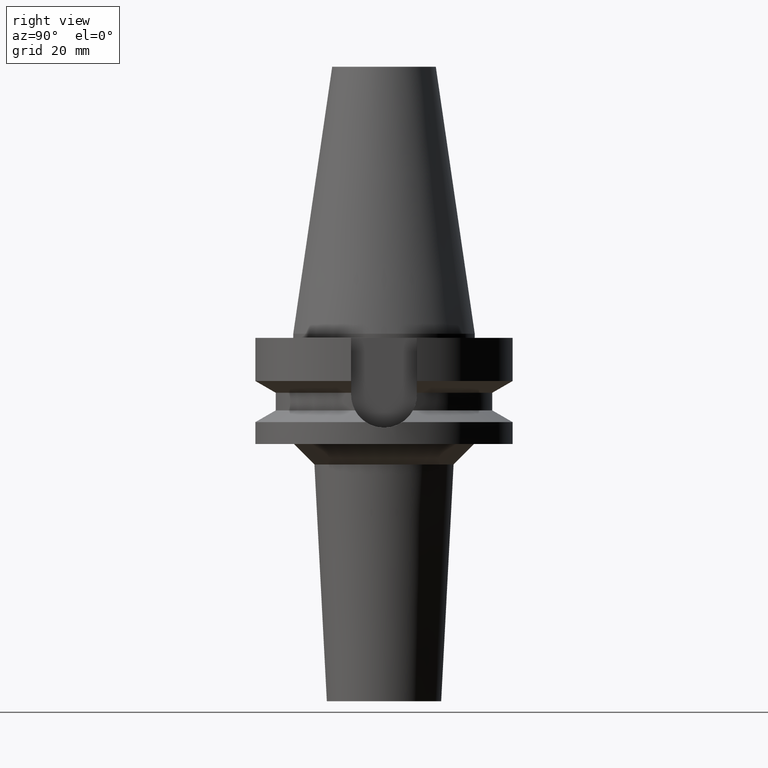
[diagram: clean part render]
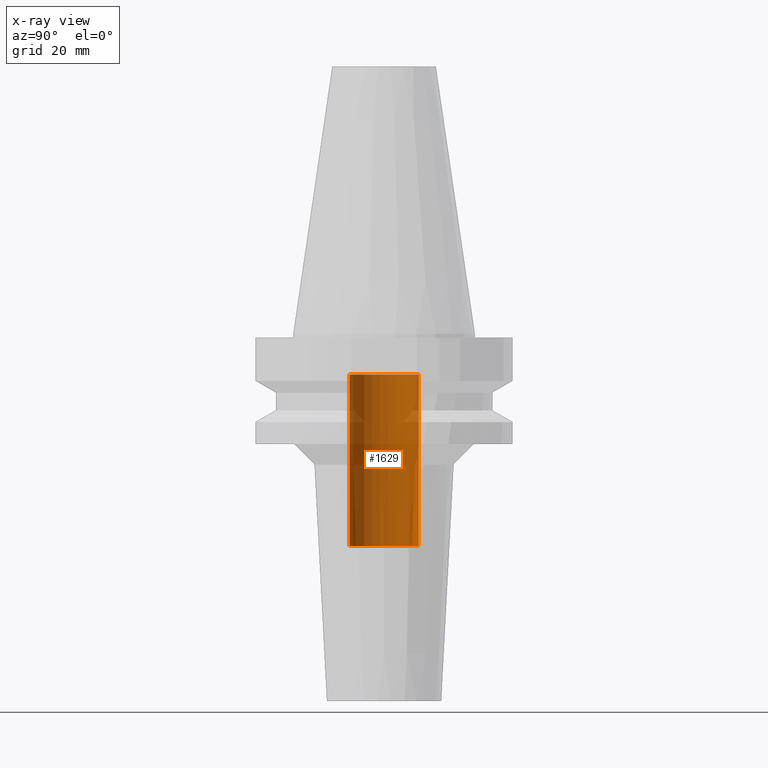
[diagram: x-ray — body ghosted, one internal face saturated and labeled with its STEP entity id]
A machine part, right view, then the same camera in x-ray: the body is ghosted and one INTERNAL B-rep face — a face not visible from any outside direction — is saturated and labeled: STEP entity #1629.
In plain terms, the highlighted cylindrical surface (edge-blend (fillet) strip) has radius 8.5 mm, axis along (0, 0, -1).
Its self-contained STEP definition (entity closure, byte-faithful):
#751=CARTESIAN_POINT('',(0.E0,2.120720862083E-14,-5.2E1));
#752=DIRECTION('',(0.E0,0.E0,-1.E0));
#753=DIRECTION('',(0.E0,-1.E0,0.E0));
#754=AXIS2_PLACEMENT_3D('',#751,#752,#753);
#783=DIRECTION('',(0.E0,0.E0,1.E0));
#784=VECTOR('',#783,4.2E1);
#785=CARTESIAN_POINT('',(0.E0,-8.5E0,-5.2E1));
#786=LINE('',#785,#784);
#790=DIRECTION('',(0.E0,0.E0,1.E0));
#791=VECTOR('',#790,4.2E1);
#792=CARTESIAN_POINT('',(0.E0,8.5E0,-5.2E1));
#793=LINE('',#792,#791);
#805=CARTESIAN_POINT('',(0.E0,2.120720862083E-14,-1.E1));
#806=DIRECTION('',(0.E0,0.E0,1.E0));
#807=DIRECTION('',(0.E0,1.E0,0.E0));
#808=AXIS2_PLACEMENT_3D('',#805,#806,#807);
#943=CARTESIAN_POINT('',(0.E0,-8.5E0,-1.E1));
#944=CARTESIAN_POINT('',(0.E0,8.5E0,-1.E1));
#945=VERTEX_POINT('',#943);
#946=VERTEX_POINT('',#944);
#947=CARTESIAN_POINT('',(0.E0,8.5E0,-5.2E1));
#948=VERTEX_POINT('',#947);
#949=CARTESIAN_POINT('',(0.E0,-8.5E0,-5.2E1));
#950=VERTEX_POINT('',#949);
#1615=CARTESIAN_POINT('',(0.E0,2.120720862083E-14,7.317E1));
#1616=DIRECTION('',(0.E0,0.E0,-1.E0));
#1617=DIRECTION('',(0.E0,-1.E0,0.E0));
#1618=AXIS2_PLACEMENT_3D('',#1615,#1616,#1617);
#1619=CYLINDRICAL_SURFACE('',#1618,8.5E0);
#1621=ORIENTED_EDGE('',*,*,#1620,.F.);
#1622=ORIENTED_EDGE('',*,*,#1604,.F.);
#1624=ORIENTED_EDGE('',*,*,#1623,.T.);
#1626=ORIENTED_EDGE('',*,*,#1625,.F.);
#1627=EDGE_LOOP('',(#1621,#1622,#1624,#1626));
#1628=FACE_OUTER_BOUND('',#1627,.F.);
#755=CIRCLE('',#754,8.5E0);
#809=CIRCLE('',#808,8.5E0);
#1604=EDGE_CURVE('',#950,#948,#755,.T.);
#1620=EDGE_CURVE('',#948,#946,#793,.T.);
#1623=EDGE_CURVE('',#950,#945,#786,.T.);
#1625=EDGE_CURVE('',#946,#945,#809,.T.);
#1629=ADVANCED_FACE('',(#1628),#1619,.F.);